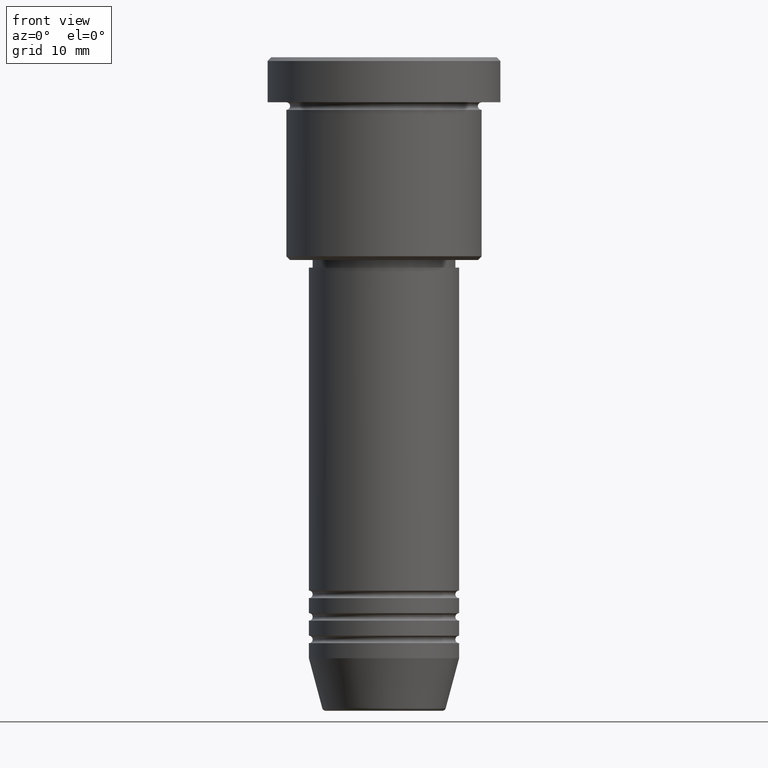
[diagram: clean part render]
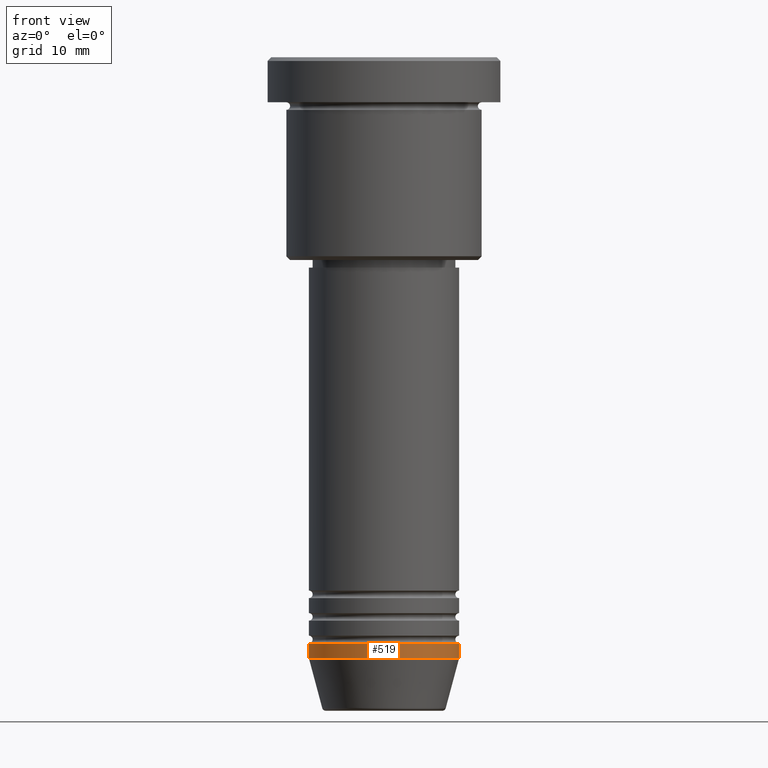
[diagram: same view with one face highlighted and labeled with its STEP entity id]
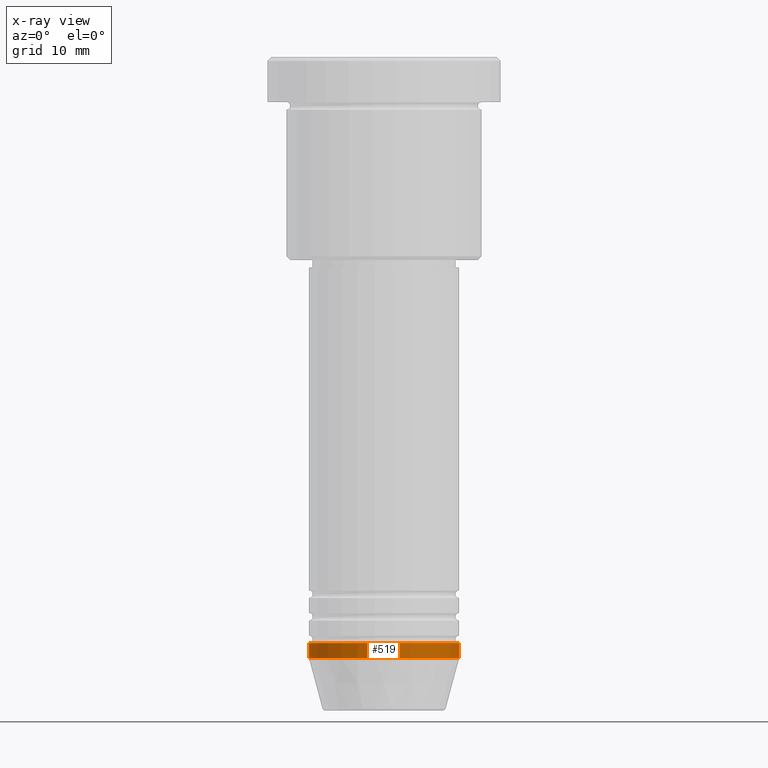
[diagram: x-ray of the same camera — body ghosted, the highlighted face saturated]
A machine part, front view. The second image highlights one B-rep face of the part: STEP entity #519.
The next image is the same camera in x-ray: the body ghosted, the highlighted face saturated — about 0% of this face is hidden behind the body in this view.
In plain terms, the highlighted cylindrical surface (partial cylindrical patch) has radius 10 mm, axis along (-0, -0, 1).
Its self-contained STEP definition (entity closure, byte-faithful):
#24 = EDGE_CURVE ( 'NONE', #1037, #461, #438, .T. ) ;
#25 = CIRCLE ( 'NONE', #289, 10.00000000000000000 ) ;
#56 = FACE_OUTER_BOUND ( 'NONE', #497, .T. ) ;
#101 = VERTEX_POINT ( 'NONE', #268 ) ;
#118 = CARTESIAN_POINT ( 'NONE',  ( 10.00000000000000000, 0.000000000000000000, -79.99999999999998579 ) ) ;
#140 = EDGE_CURVE ( 'NONE', #101, #257, #907, .T. ) ;
#149 = ORIENTED_EDGE ( 'NONE', *, *, #24, .T. ) ;
#152 = VECTOR ( 'NONE', #1079, 1000.000000000000000 ) ;
#192 = ORIENTED_EDGE ( 'NONE', *, *, #140, .F. ) ;
#198 = CARTESIAN_POINT ( 'NONE',  ( 0.000000000000000000, 0.000000000000000000, -77.99999999999998579 ) ) ;
#206 = DIRECTION ( 'NONE',  ( -0.000000000000000000, -0.000000000000000000, 1.000000000000000000 ) ) ;
#229 = AXIS2_PLACEMENT_3D ( 'NONE', #1076, #1089, #263 ) ;
#257 = VERTEX_POINT ( 'NONE', #391 ) ;
#261 = ORIENTED_EDGE ( 'NONE', *, *, #1168, .T. ) ;
#263 = DIRECTION ( 'NONE',  ( 1.000000000000000000, 0.000000000000000000, 0.000000000000000000 ) ) ;
#268 = CARTESIAN_POINT ( 'NONE',  ( -10.00000000000000000, 1.224646799147353256E-15, -79.99999999999998579 ) ) ;
#289 = AXIS2_PLACEMENT_3D ( 'NONE', #335, #713, #700 ) ;
#335 = CARTESIAN_POINT ( 'NONE',  ( 0.000000000000000000, 0.000000000000000000, -79.99999999999998579 ) ) ;
#391 = CARTESIAN_POINT ( 'NONE',  ( -10.00000000000000000, 1.224646799147353256E-15, -77.99999999999998579 ) ) ;
#394 = AXIS2_PLACEMENT_3D ( 'NONE', #198, #206, #724 ) ;
#438 = LINE ( 'NONE', #1008, #549 ) ;
#447 = EDGE_CURVE ( 'NONE', #257, #461, #995, .T. ) ;
#461 = VERTEX_POINT ( 'NONE', #861 ) ;
#497 = EDGE_LOOP ( 'NONE', ( #192, #261, #149, #1148 ) ) ;
#519 = ADVANCED_FACE ( 'NONE', ( #56 ), #1149, .T. ) ;
#549 = VECTOR ( 'NONE', #798, 1000.000000000000000 ) ;
#700 = DIRECTION ( 'NONE',  ( 1.000000000000000000, 0.000000000000000000, 0.000000000000000000 ) ) ;
#704 = CARTESIAN_POINT ( 'NONE',  ( -10.00000000000000000, 1.224646799147353256E-15, 0.000000000000000000 ) ) ;
#713 = DIRECTION ( 'NONE',  ( -0.000000000000000000, -0.000000000000000000, 1.000000000000000000 ) ) ;
#724 = DIRECTION ( 'NONE',  ( 1.000000000000000000, 0.000000000000000000, 0.000000000000000000 ) ) ;
#798 = DIRECTION ( 'NONE',  ( -0.000000000000000000, -0.000000000000000000, 1.000000000000000000 ) ) ;
#861 = CARTESIAN_POINT ( 'NONE',  ( 10.00000000000000000, 0.000000000000000000, -77.99999999999998579 ) ) ;
#907 = LINE ( 'NONE', #704, #152 ) ;
#995 = CIRCLE ( 'NONE', #394, 10.00000000000000000 ) ;
#1008 = CARTESIAN_POINT ( 'NONE',  ( 10.00000000000000000, 0.000000000000000000, 0.000000000000000000 ) ) ;
#1037 = VERTEX_POINT ( 'NONE', #118 ) ;
#1076 = CARTESIAN_POINT ( 'NONE',  ( 0.000000000000000000, 0.000000000000000000, 0.000000000000000000 ) ) ;
#1079 = DIRECTION ( 'NONE',  ( -0.000000000000000000, -0.000000000000000000, 1.000000000000000000 ) ) ;
#1089 = DIRECTION ( 'NONE',  ( -0.000000000000000000, -0.000000000000000000, 1.000000000000000000 ) ) ;
#1148 = ORIENTED_EDGE ( 'NONE', *, *, #447, .F. ) ;
#1149 = CYLINDRICAL_SURFACE ( 'NONE', #229, 10.00000000000000000 ) ;
#1168 = EDGE_CURVE ( 'NONE', #101, #1037, #25, .T. ) ;